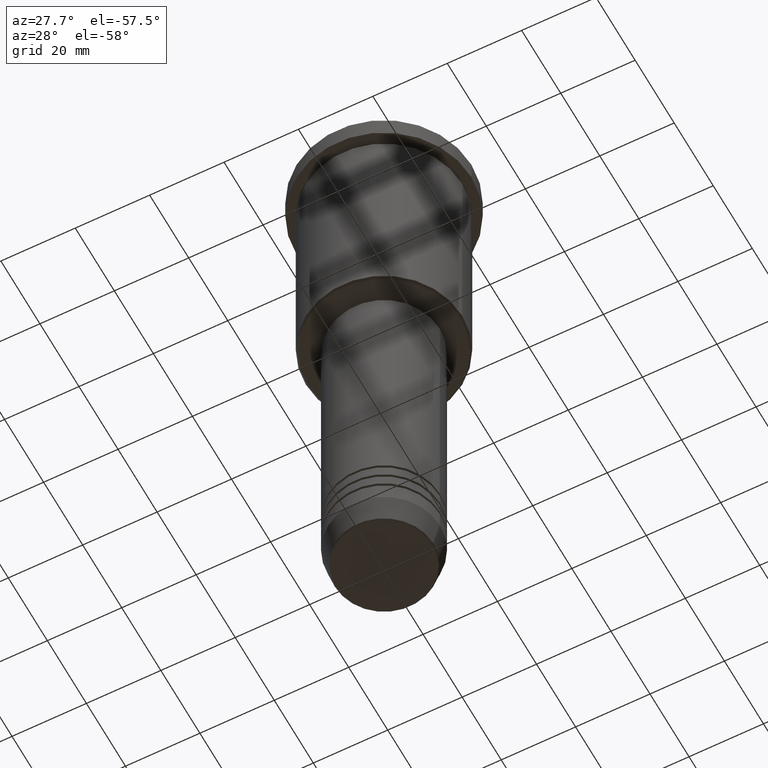
[diagram: clean part render]
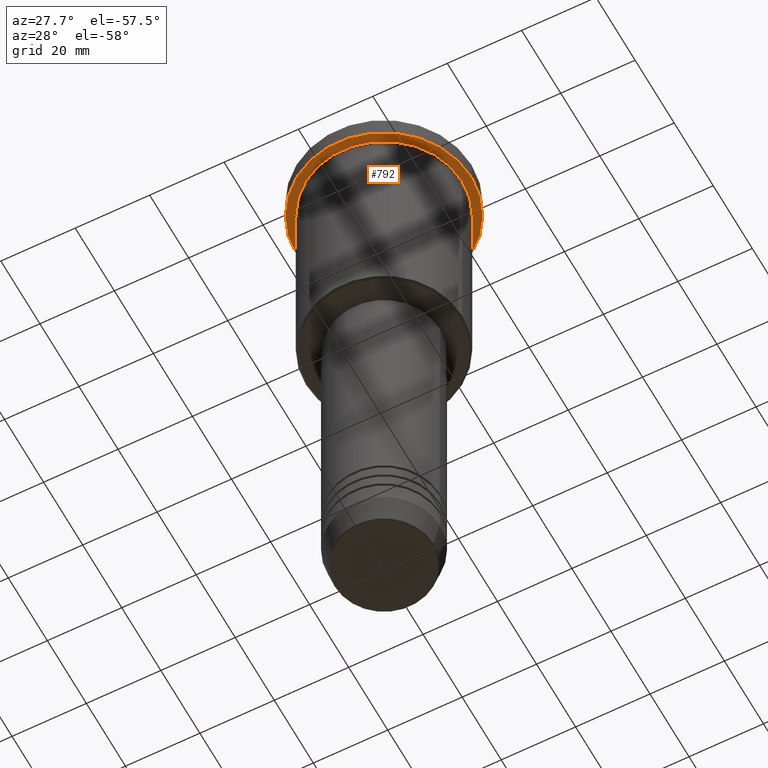
[diagram: same view with one face highlighted and labeled with its STEP entity id]
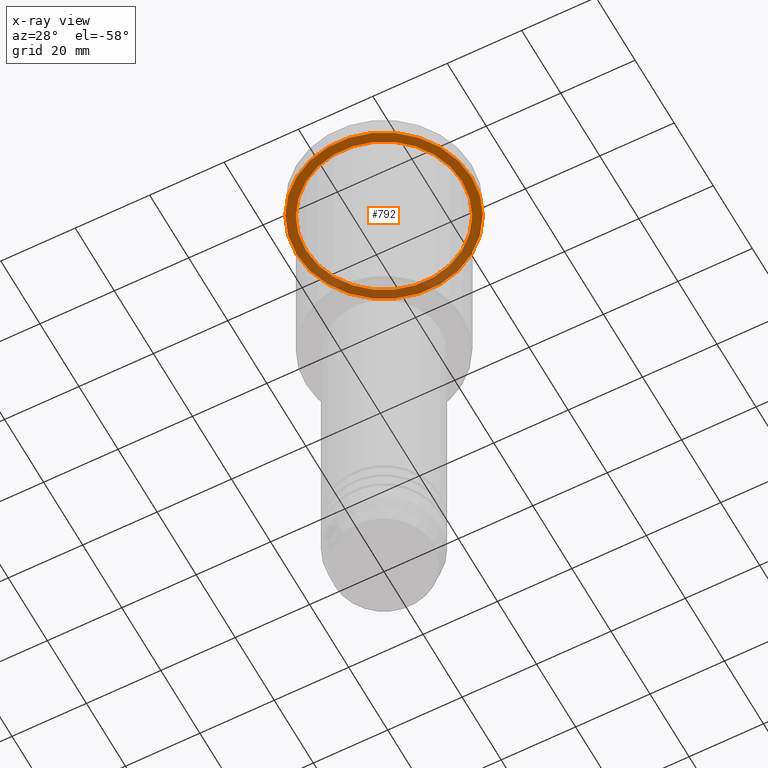
[diagram: x-ray of the same camera — body ghosted, the highlighted face saturated]
A machine part, auxiliary view. The second image highlights one B-rep face of the part: STEP entity #792.
The next image is the same camera in x-ray: the body ghosted, the highlighted face saturated — about 39% of this face is hidden behind the body in this view.
In plain terms, the highlighted planar face has unit normal (0, 0, -1).
Its self-contained STEP definition (entity closure, byte-faithful):
#37 = CARTESIAN_POINT ( 'NONE',  ( 0.000000000000000000, 0.000000000000000000, -5.999999999999993783 ) ) ;
#44 = AXIS2_PLACEMENT_3D ( 'NONE', #908, #362, #719 ) ;
#99 = AXIS2_PLACEMENT_3D ( 'NONE', #523, #545, #1097 ) ;
#124 = AXIS2_PLACEMENT_3D ( 'NONE', #1101, #558, #465 ) ;
#136 = EDGE_CURVE ( 'NONE', #337, #1071, #602, .T. ) ;
#138 = EDGE_CURVE ( 'NONE', #297, #1035, #862, .T. ) ;
#172 = EDGE_CURVE ( 'NONE', #1071, #337, #1107, .T. ) ;
#191 = ORIENTED_EDGE ( 'NONE', *, *, #138, .T. ) ;
#271 = CARTESIAN_POINT ( 'NONE',  ( 0.000000000000000000, 0.000000000000000000, -5.999999999999993783 ) ) ;
#297 = VERTEX_POINT ( 'NONE', #1009 ) ;
#337 = VERTEX_POINT ( 'NONE', #461 ) ;
#341 = CARTESIAN_POINT ( 'NONE',  ( -21.00000000000000000, 0.000000000000000000, -5.999999999999992895 ) ) ;
#343 = AXIS2_PLACEMENT_3D ( 'NONE', #271, #1117, #481 ) ;
#362 = DIRECTION ( 'NONE',  ( 0.000000000000000000, 0.000000000000000000, -1.000000000000000000 ) ) ;
#404 = DIRECTION ( 'NONE',  ( -0.000000000000000000, -0.000000000000000000, 1.000000000000000000 ) ) ;
#435 = PLANE ( 'NONE',  #44 ) ;
#461 = CARTESIAN_POINT ( 'NONE',  ( 23.50000000000000000, 0.000000000000000000, -5.999999999999993783 ) ) ;
#465 = DIRECTION ( 'NONE',  ( 1.000000000000000000, 0.000000000000000000, 0.000000000000000000 ) ) ;
#481 = DIRECTION ( 'NONE',  ( -1.000000000000000000, 0.000000000000000000, 0.000000000000000000 ) ) ;
#505 = ORIENTED_EDGE ( 'NONE', *, *, #136, .F. ) ;
#523 = CARTESIAN_POINT ( 'NONE',  ( 0.000000000000000000, 0.000000000000000000, -5.999999999999993783 ) ) ;
#541 = FACE_OUTER_BOUND ( 'NONE', #709, .T. ) ;
#545 = DIRECTION ( 'NONE',  ( -0.000000000000000000, -0.000000000000000000, 1.000000000000000000 ) ) ;
#558 = DIRECTION ( 'NONE',  ( -0.000000000000000000, -0.000000000000000000, 1.000000000000000000 ) ) ;
#581 = EDGE_LOOP ( 'NONE', ( #747, #191 ) ) ;
#602 = CIRCLE ( 'NONE', #99, 23.50000000000000000 ) ;
#709 = EDGE_LOOP ( 'NONE', ( #505, #851 ) ) ;
#719 = DIRECTION ( 'NONE',  ( -1.000000000000000000, 0.000000000000000000, -0.000000000000000000 ) ) ;
#738 = CIRCLE ( 'NONE', #1062, 21.00000000000000000 ) ;
#747 = ORIENTED_EDGE ( 'NONE', *, *, #898, .T. ) ;
#769 = DIRECTION ( 'NONE',  ( -1.000000000000000000, 0.000000000000000000, 0.000000000000000000 ) ) ;
#792 = ADVANCED_FACE ( 'NONE', ( #1005, #541 ), #435, .T. ) ;
#851 = ORIENTED_EDGE ( 'NONE', *, *, #172, .F. ) ;
#862 = CIRCLE ( 'NONE', #343, 21.00000000000000000 ) ;
#872 = CARTESIAN_POINT ( 'NONE',  ( -23.50000000000000000, 2.877919977996280320E-15, -5.999999999999993783 ) ) ;
#898 = EDGE_CURVE ( 'NONE', #1035, #297, #738, .T. ) ;
#908 = CARTESIAN_POINT ( 'NONE',  ( 0.000000000000000000, 23.50000000000000000, -5.999999999999993783 ) ) ;
#1005 = FACE_BOUND ( 'NONE', #581, .T. ) ;
#1009 = CARTESIAN_POINT ( 'NONE',  ( 21.00000000000000000, 2.571758278209441661E-15, -5.999999999999992895 ) ) ;
#1035 = VERTEX_POINT ( 'NONE', #341 ) ;
#1062 = AXIS2_PLACEMENT_3D ( 'NONE', #37, #404, #769 ) ;
#1071 = VERTEX_POINT ( 'NONE', #872 ) ;
#1097 = DIRECTION ( 'NONE',  ( 1.000000000000000000, 0.000000000000000000, 0.000000000000000000 ) ) ;
#1101 = CARTESIAN_POINT ( 'NONE',  ( 0.000000000000000000, 0.000000000000000000, -5.999999999999993783 ) ) ;
#1107 = CIRCLE ( 'NONE', #124, 23.50000000000000000 ) ;
#1117 = DIRECTION ( 'NONE',  ( -0.000000000000000000, -0.000000000000000000, 1.000000000000000000 ) ) ;